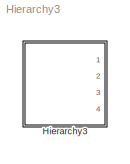
MODEL Hierarchy3
KIND model
CONFIG AbsTol = auto
CONFIG FixedStep = auto
CONFIG MaxStep = auto
CONFIG MinStep = auto
CONFIG RelTol = 1e-3
CONFIG Solver = ode45
CONFIG SolverMode = Auto
CONFIG StartTime = 0.0
CONFIG StopTime = 10.0
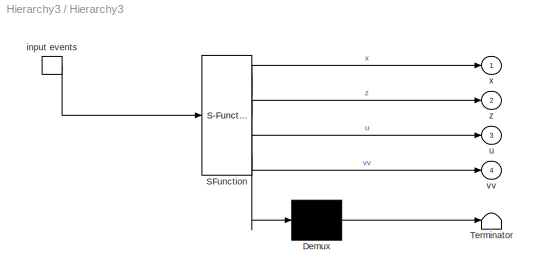
BLOCK [SubSystem] Hierarchy3
  MaskDescription = Stateflow diagram
  MaskDisplay = plot(sf('Private','sfblk','xIcon'),sf('Private','sfblk','yIcon'));text(0.5,0,sf('Private', 'sfblk', 'tIcon'),'HorizontalAl','Center','VerticalAl','Bottom');
  MaskIconFrame = off
  MaskIconOpaque = off
  MaskIconRotate = none
  MaskIconUnits = autoscale
  MaskSelfModifiable = on
  MaskType = Stateflow
  Ports = [0, 4, 0, 1]
  TreatAsAtomicUnit = off
BLOCK [Demux] Hierarchy3/ Demux 
  Outputs = 1
  Ports = [1, 1]
BLOCK [S-Function] Hierarchy3/ SFunction 
  FunctionName = sf_sfun
  PortCounts = [1 5]
  Ports = [1, 5]
  Tag = Stateflow S-Function Hierarchy3 1
BLOCK [Terminator] Hierarchy3/ Terminator 
BLOCK [TriggerPort] Hierarchy3/ input events 
  Ports = [0, 1]
  ShowOutputPort = on
  TriggerType = either
BLOCK [Outport] Hierarchy3/u
  Port = 3
BLOCK [Outport] Hierarchy3/vv
  Port = 4
BLOCK [Outport] Hierarchy3/x
BLOCK [Outport] Hierarchy3/z
  Port = 2
LINE Hierarchy3/ Demux :1 -> Hierarchy3/ Terminator :1
LINE Hierarchy3/ SFunction :1 -> Hierarchy3/ Demux :1
LINE Hierarchy3/ SFunction :2 -> Hierarchy3/x:1
LINE Hierarchy3/ SFunction :3 -> Hierarchy3/z:1
LINE Hierarchy3/ SFunction :4 -> Hierarchy3/u:1
LINE Hierarchy3/ SFunction :5 -> Hierarchy3/vv:1
LINE Hierarchy3/ input events :1 -> Hierarchy3/ SFunction :1
CHART Hierarchy3 states=14 transitions=42
  STATE_LABEL 'A'
  STATE_LABEL 'A1/\\nen: x=0'
  STATE_LABEL 'A2/\\nen: x=5'
  STATE_LABEL 'B'
  STATE_LABEL 'B1/\\nen: z=0'
  STATE_LABEL 'B2/\\nen: z=5'
  STATE_LABEL 'TOP1'
  STATE_LABEL 'TOP2'
  STATE_LABEL 'C'
  STATE_LABEL 'C1/\\nen: vv=0'
  STATE_LABEL 'C2/\\nen:vv=5'
  STATE_LABEL 'D'
  STATE_LABEL 'D1/\\nen: u=0'
  STATE_LABEL 'D2/\\nen: u=5'
